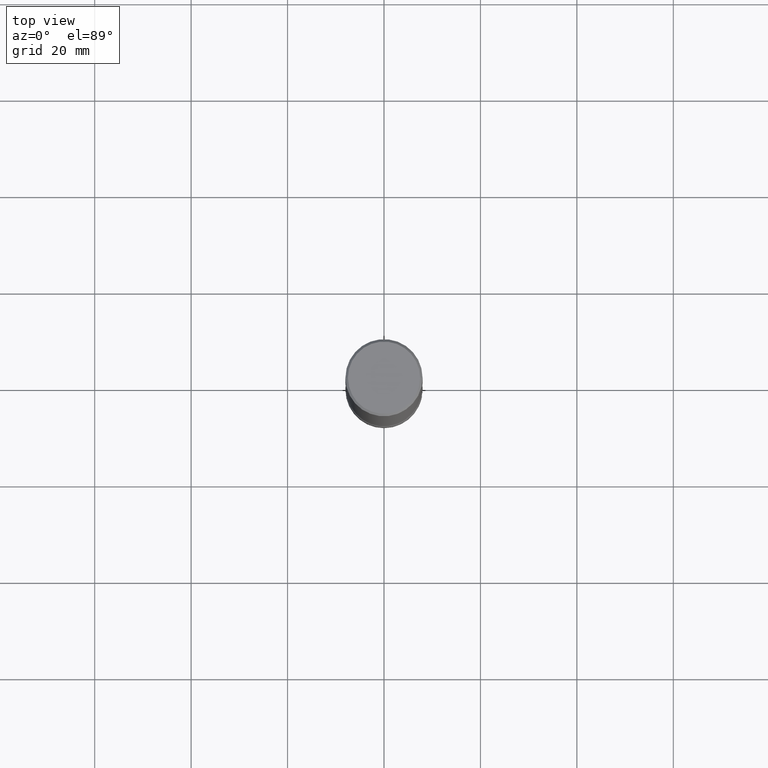
[diagram: clean part render]
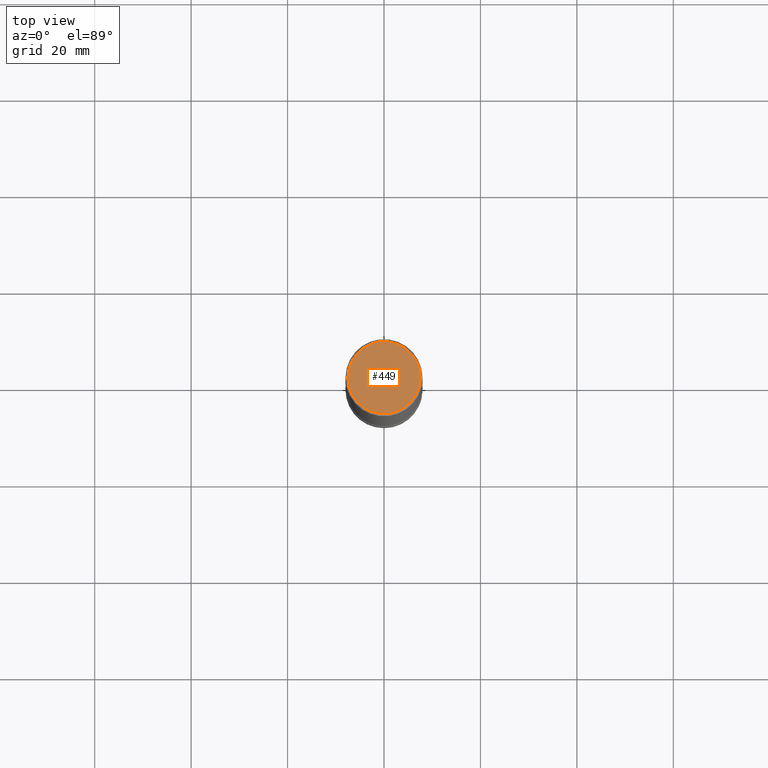
[diagram: same view with one face highlighted and labeled with its STEP entity id]
A machine part, top view. The second image highlights one B-rep face of the part: STEP entity #449.
In plain terms, the highlighted planar face has unit normal (-0, 0, 1).
Its self-contained STEP definition (entity closure, byte-faithful):
#15 = DIRECTION ( 'NONE',  ( -1.000000000000000000, 6.982962677686267499E-15, -4.876176775795936353E-29 ) ) ;
#107 = VERTEX_POINT ( 'NONE', #459 ) ;
#127 = PLANE ( 'NONE',  #411 ) ;
#144 = CARTESIAN_POINT ( 'NONE',  ( -0.2949499999999996569, 2.059624841783562091E-15, -1.438228340021009676E-29 ) ) ;
#162 = CARTESIAN_POINT ( 'NONE',  ( 0.000000000000000000, 0.000000000000000000, 0.000000000000000000 ) ) ;
#166 = FACE_OUTER_BOUND ( 'NONE', #474, .T. ) ;
#172 = DIRECTION ( 'NONE',  ( -2.438088387897960049E-29, 3.491481338843145188E-15, 1.000000000000000000 ) ) ;
#187 = DIRECTION ( 'NONE',  ( -1.000000000000000000, 6.982962677686267499E-15, -4.876176775795936353E-29 ) ) ;
#189 = ORIENTED_EDGE ( 'NONE', *, *, #210, .F. ) ;
#206 = EDGE_CURVE ( 'NONE', #107, #469, #487, .T. ) ;
#210 = EDGE_CURVE ( 'NONE', #469, #107, #498, .T. ) ;
#225 = AXIS2_PLACEMENT_3D ( 'NONE', #491, #333, #15 ) ;
#258 = ORIENTED_EDGE ( 'NONE', *, *, #206, .F. ) ;
#262 = AXIS2_PLACEMENT_3D ( 'NONE', #162, #457, #187 ) ;
#305 = CARTESIAN_POINT ( 'NONE',  ( 2.059624841783562091E-15, 0.2949499999999996569, -1.025543908401684169E-15 ) ) ;
#333 = DIRECTION ( 'NONE',  ( 2.445468806185136597E-29, -3.491481338843145583E-15, -1.000000000000000000 ) ) ;
#411 = AXIS2_PLACEMENT_3D ( 'NONE', #305, #172, #478 ) ;
#449 = ADVANCED_FACE ( 'NONE', ( #166 ), #127, .T. ) ;
#457 = DIRECTION ( 'NONE',  ( 2.445468806185136597E-29, -3.491481338843145583E-15, -1.000000000000000000 ) ) ;
#459 = CARTESIAN_POINT ( 'NONE',  ( 0.2949499999999996569, -2.127023677808858891E-15, 1.463937372219020093E-29 ) ) ;
#469 = VERTEX_POINT ( 'NONE', #144 ) ;
#474 = EDGE_LOOP ( 'NONE', ( #189, #258 ) ) ;
#478 = DIRECTION ( 'NONE',  ( 1.000000000000000000, -6.982962677686265922E-15, 4.876176775795935793E-29 ) ) ;
#487 = CIRCLE ( 'NONE', #225, 0.2949499999999996569 ) ;
#491 = CARTESIAN_POINT ( 'NONE',  ( 0.000000000000000000, 0.000000000000000000, 0.000000000000000000 ) ) ;
#498 = CIRCLE ( 'NONE', #262, 0.2949499999999996569 ) ;